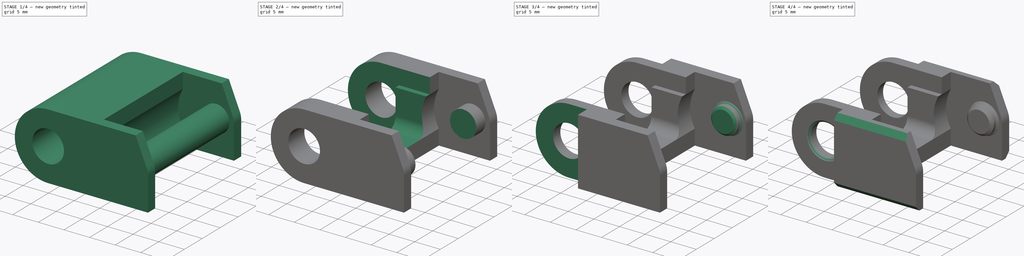
[diagram: build sequence overview — one tinted view per stage of 4, left to right]
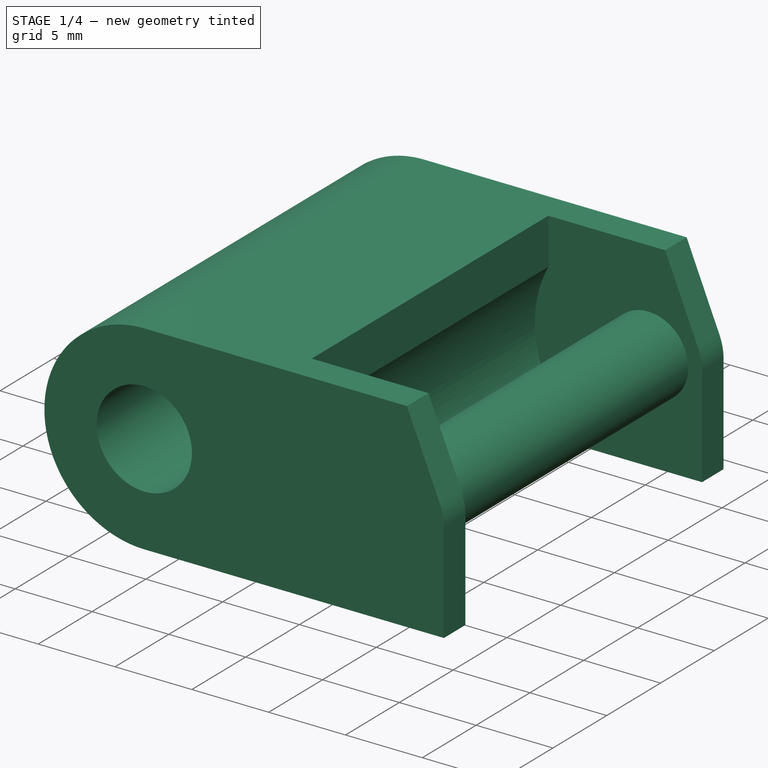
[diagram: stage 1 of 4 — iso view after this stage's code; geometry added in this stage tinted green]
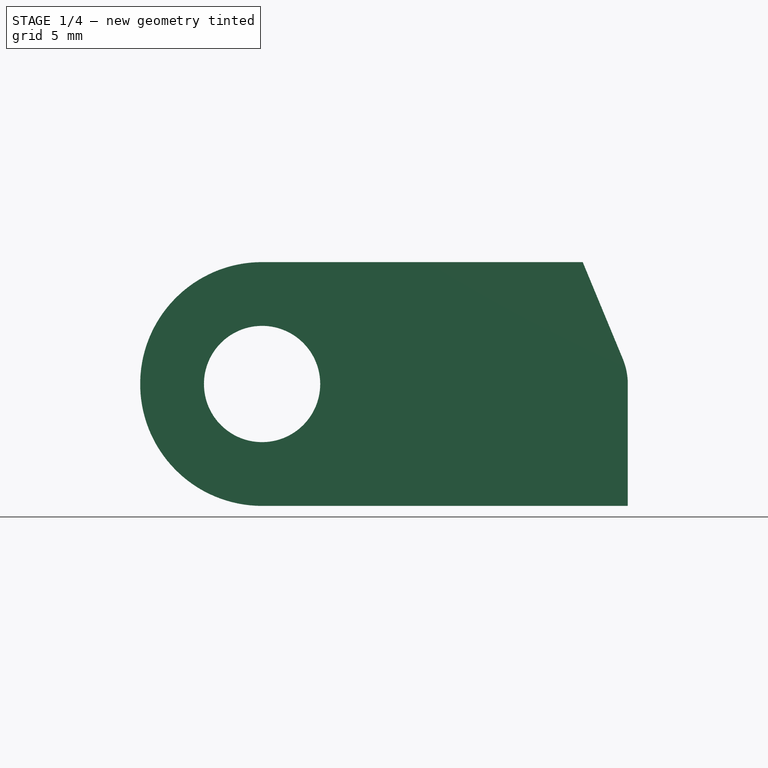
[diagram: stage 1 of 4 — front view after this stage's code; geometry added in this stage tinted green]
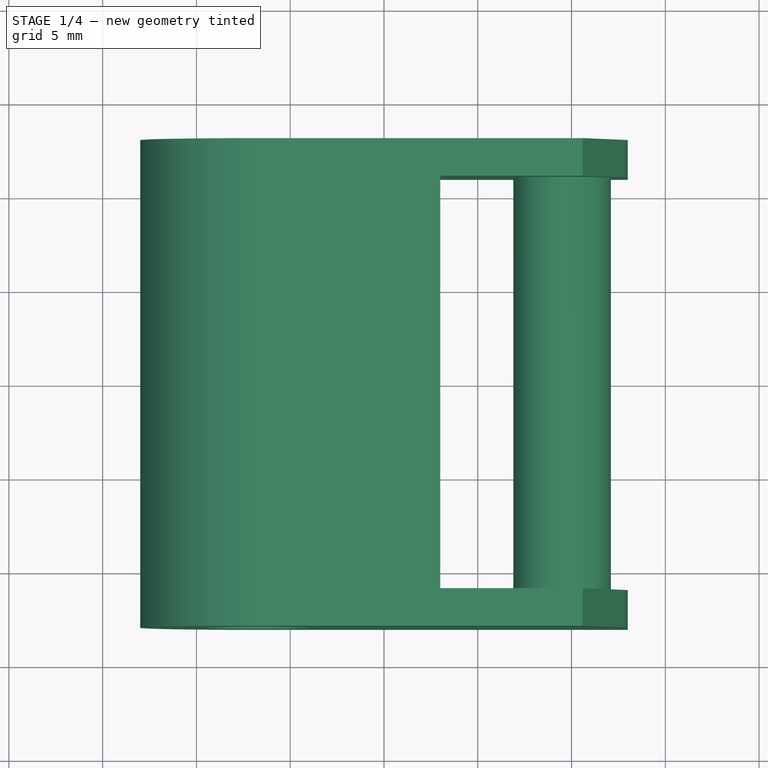
[diagram: stage 1 of 4 — top view after this stage's code; geometry added in this stage tinted green]
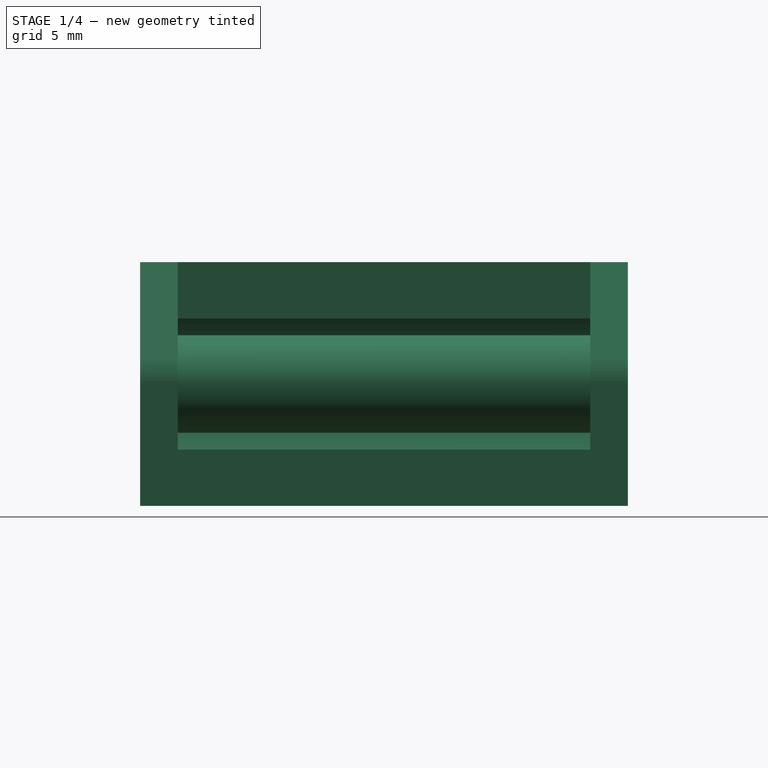
[diagram: stage 1 of 4 — right view after this stage's code; geometry added in this stage tinted green]
FCSTD DOCUMENT  (FreeCAD 0.19R20209 (Git))
Label: DragChainBund_22.5
License: Creative Commons Attribution
LicenseURL: http://creativecommons.org/licenses/by/4.0/
objects: Sketcher::SketchObject×5, PartDesign::Pocket×4, PartDesign::Chamfer×4, PartDesign::Pad×1, PartDesign::Body×1
note: 24 computed .brp shape members not serialized (recipe doc carries the construction recipe); baked Part::Feature solids carry a one-line shape summary decoded from their .brp

FEATURE [Sketcher::SketchObject] Sketch
  MapMode = 5
  Placement = pos=(0,0,0) rot=(1,0,0;1.5708rad)
  Support = -> [XZ_Plane]
  sketch-geometry (11):
    g0: LineSegment [constr] StartX=-13 StartY=6.5 StartZ=0 EndX=13 EndY=6.5 EndZ=0
    g1: LineSegment [constr] StartX=13 StartY=6.5 StartZ=0 EndX=13 EndY=-6.5 EndZ=0
    g2: LineSegment [constr] StartX=13 StartY=-6.5 StartZ=0 EndX=-13 EndY=-6.5 EndZ=0
    g3: LineSegment [constr] StartX=-13 StartY=-6.5 StartZ=0 EndX=-13 EndY=6.5 EndZ=0
    g4: ArcOfCircle CenterX=-6.5 CenterY=0 CenterZ=0 NormalX=0 NormalY=0 NormalZ=1 AngleXU=0 Radius=6.5 StartAngle=1.5708 EndAngle=4.71239
    g5: LineSegment StartX=-6.5 StartY=-6.5 StartZ=0 EndX=13 EndY=-6.5 EndZ=0
    g6: LineSegment StartX=13 StartY=-6.5 StartZ=0 EndX=13 EndY=0 EndZ=0
    g7: LineSegment StartX=10.596 StartY=6.5 StartZ=0 EndX=-6.5 EndY=6.5 EndZ=0
    g8: ArcOfCircle CenterX=9.5 CenterY=0 CenterZ=0 NormalX=0 NormalY=0 NormalZ=1 AngleXU=0 Radius=3.5 StartAngle=0 EndAngle=0.392699
    g9: LineSegment StartX=10.596 StartY=6.5 StartZ=0 EndX=12.7336 EndY=1.33939 EndZ=0
    g10: Circle CenterX=-6.5 CenterY=0 CenterZ=0 NormalX=0 NormalY=0 NormalZ=1 AngleXU=0 Radius=3.1
  constraints (30):
    c: Coincident(g0,g1)
    c: Coincident(g1,g2)
    c: Coincident(g2,g3)
    c: Coincident(g3,g0)
    c: Horizontal(g0)
    c: Horizontal(g2)
    c: Vertical(g1)
    c: Vertical(g3)
    c: Symmetric(g1,g0,g-1)
    c: DistanceX(g0,g0) = 26
    c: DistanceY(g3,g3) = 13
    c: Angle(g4) = 3.14159
    c: Diameter(g4) = 13
    c: Vertical(g4,g4)
    c: PointOnObject(g4,g-1)
    c: Tangent(g4,g3)
    c: Coincident(g5,g6)
    c: Vertical(g6)
    c: Horizontal(g7)
    c: Coincident(g7,g4)
    c: Coincident(g5,g4)
    c: Coincident(g5,g1)
    c: PointOnObject(g6,g-1)
    c: DistanceX(g4,g8) = 16
    c: Coincident(g9,g7)
    c: Tangent(g8,g6) = -1.5708
    c: Tangent(g9,g8) = 1.5708
    c: Angle(g9,g6) = 2.74889
    c: Coincident(g10,g4)
    c: Diameter(g10) = 6.2
FEATURE [PartDesign::Pad] Pad
  Length = 26
  Length2 = 100
  Midplane = true
  Placement = pos=(0,0,0) rot=(1,0,0;1.5708rad)
  Profile = -> Sketch
  Refine = true
  Type = 0
FEATURE [Sketcher::SketchObject] Sketch001
  ExternalGeometry = -> [Pad]
  MapMode = 5
  Placement = pos=(0,0,0) rot=(1,0,0;1.5708rad)
  Support = -> [XZ_Plane]
  sketch-geometry (11):
    g0: Circle CenterX=9.5 CenterY=0 CenterZ=0 NormalX=0 NormalY=0 NormalZ=1 AngleXU=0 Radius=2.6
    g1: ArcOfCircle CenterX=9.5 CenterY=0 CenterZ=0 NormalX=0 NormalY=0 NormalZ=1 AngleXU=0 Radius=7.38241 StartAngle=2.64765 EndAngle=3.63553
    g2: LineSegment [constr] StartX=-3 StartY=10.7323 StartZ=0 EndX=3 EndY=10.7323 EndZ=0
    g3: LineSegment [constr] StartX=3 StartY=10.7323 StartZ=0 EndX=3 EndY=-10.7323 EndZ=0
    g4: LineSegment [constr] StartX=3 StartY=-10.7323 StartZ=0 EndX=-3 EndY=-10.7323 EndZ=0
    g5: LineSegment [constr] StartX=-3 StartY=-10.7323 StartZ=0 EndX=-3 EndY=10.7323 EndZ=0
    g6: LineSegment StartX=9.5 StartY=7.38241 StartZ=0 EndX=3 EndY=7.38241 EndZ=0
    g7: LineSegment StartX=3 StartY=7.38241 StartZ=0 EndX=3 EndY=3.5 EndZ=0
    g8: LineSegment StartX=3 StartY=-7.38241 StartZ=0 EndX=9.5 EndY=-7.38241 EndZ=0
    g9: LineSegment StartX=3 StartY=-3.5 StartZ=0 EndX=3 EndY=-7.38241 EndZ=0
    g10: ArcOfCircle CenterX=9.5 CenterY=0 CenterZ=0 NormalX=0 NormalY=0 NormalZ=1 AngleXU=0 Radius=7.38241 StartAngle=4.71239 EndAngle=7.85398
  constraints (30):
    c: PointOnObject(g0,g-1)
    c: DistanceX(g-3,g0) = 16
    c: Diameter(g0) = 5.2
    c: Coincident(g1,g0)
    c: Coincident(g2,g3)
    c: Coincident(g3,g4)
    c: Coincident(g4,g5)
    c: Coincident(g5,g2)
    c: Horizontal(g2)
    c: Horizontal(g4)
    c: Vertical(g3)
    c: Vertical(g5)
    c: Symmetric(g2,g3,g-1)
    c: DistanceX(g2,g2) = 6
    c: PointOnObject(g-4,g1)
    c: Horizontal(g6)
    c: Coincident(g6,g7)
    c: Vertical(g7)
    c: Coincident(g9,g8)
    c: Horizontal(g8)
    c: PointOnObject(g6,g3)
    c: PointOnObject(g7,g1)
    c: PointOnObject(g9,g1)
    c: Tangent(g7,g9)
    c: PointOnObject(g1,g3)
    c: PointOnObject(g10,g6)
    c: Equal(g1,g10)
    c: PointOnObject(g1,g3)
    c: Coincident(g10,g8)
    c: Coincident(g1,g10)
FEATURE [PartDesign::Pocket] Pocket
  BaseFeature = -> Pad
  Length = 22
  Length2 = 100
  Midplane = true
  Placement = pos=(0,0,0) rot=(1,0,0;1.5708rad)
  Profile = -> Sketch001
  Refine = true
  Type = 0
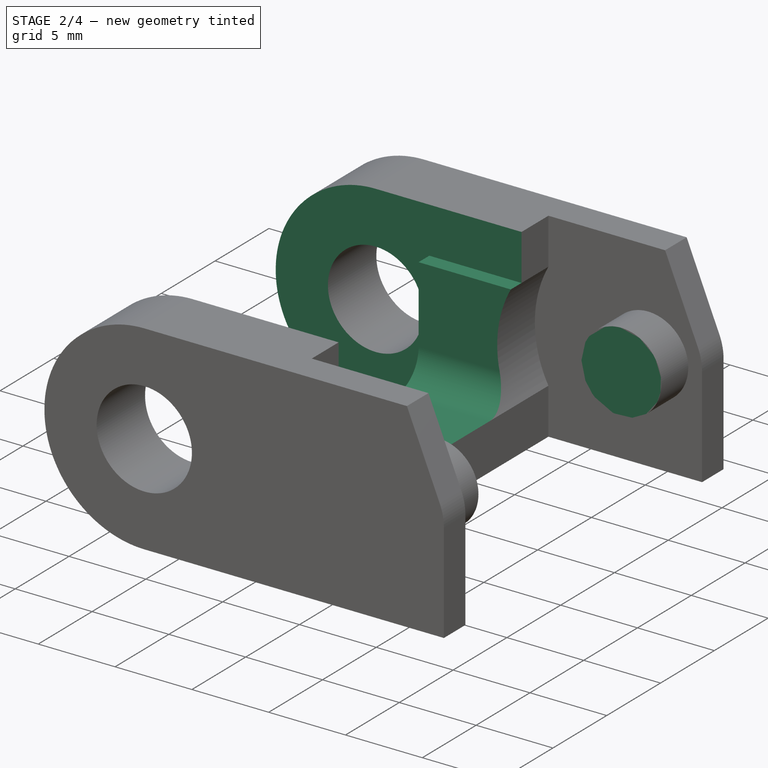
[diagram: stage 2 of 4 — iso view after this stage's code; geometry added in this stage tinted green]
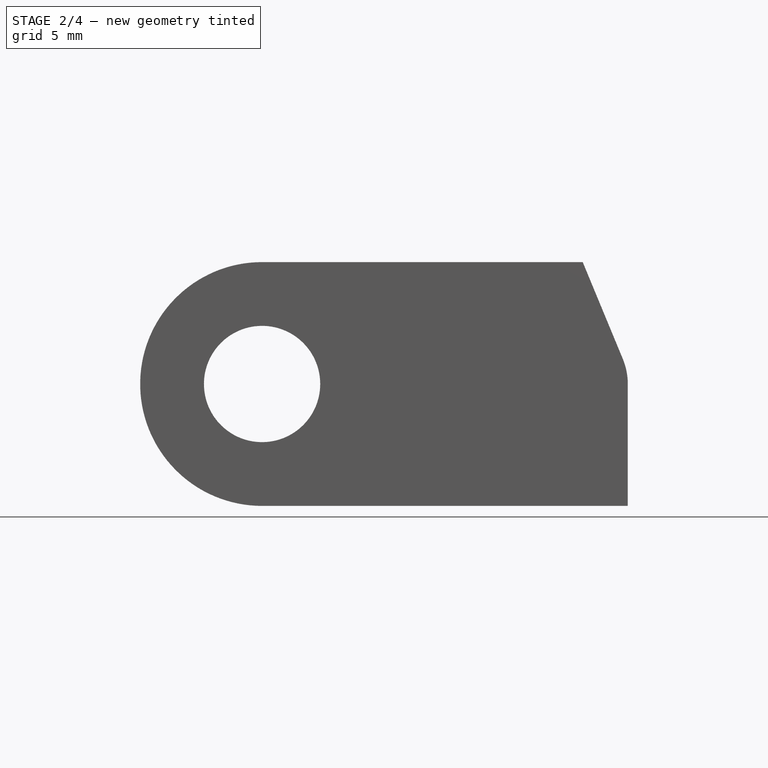
[diagram: stage 2 of 4 — front view after this stage's code; geometry added in this stage tinted green]
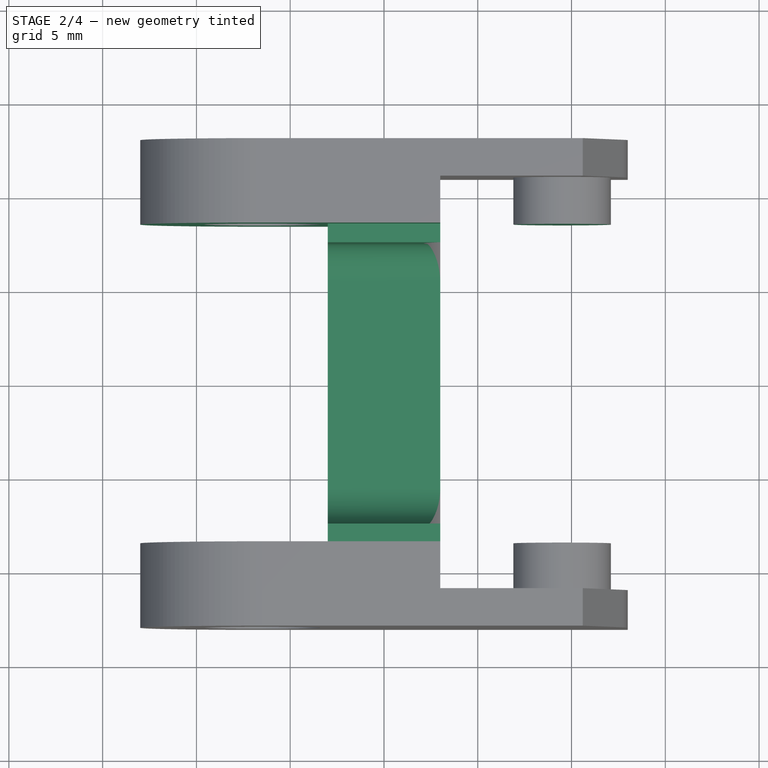
[diagram: stage 2 of 4 — top view after this stage's code; geometry added in this stage tinted green]
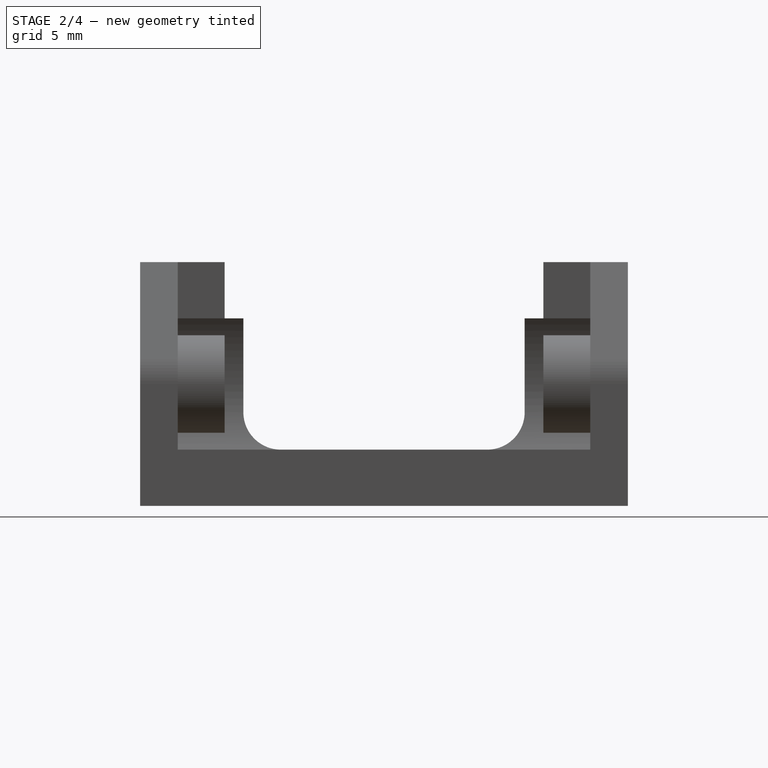
[diagram: stage 2 of 4 — right view after this stage's code; geometry added in this stage tinted green]
FEATURE [Sketcher::SketchObject] Sketch002
  ExternalGeometry = -> [Pocket]
  MapMode = 5
  Placement = pos=(0,0,0) rot=(1,0,0;1.5708rad)
  Support = -> [XZ_Plane]
  sketch-geometry (8):
    g0: LineSegment StartX=-3 StartY=3.5 StartZ=0 EndX=3 EndY=3.5 EndZ=0
    g1: LineSegment StartX=3 StartY=3.5 StartZ=0 EndX=3 EndY=-9.5 EndZ=0
    g2: LineSegment StartX=3 StartY=-9.5 StartZ=0 EndX=14.9673 EndY=-9.5 EndZ=0
    g3: LineSegment StartX=14.9673 StartY=-9.5 StartZ=0 EndX=14.9673 EndY=9.5 EndZ=0
    g4: LineSegment StartX=14.9673 StartY=9.5 StartZ=0 EndX=-6.5 EndY=9.5 EndZ=0
    g5: LineSegment StartX=-3 StartY=3.5 StartZ=0 EndX=-3 EndY=-9.5 EndZ=0
    g6: LineSegment StartX=-3 StartY=-9.5 StartZ=0 EndX=-6.5 EndY=-9.5 EndZ=0
    g7: ArcOfCircle CenterX=-6.5 CenterY=0 CenterZ=0 NormalX=0 NormalY=0 NormalZ=1 AngleXU=0 Radius=9.5 StartAngle=1.5708 EndAngle=4.71239
  constraints (22):
    c: Coincident(g0,g1)
    c: Vertical(g1)
    c: Coincident(g1,g2)
    c: Horizontal(g2)
    c: Coincident(g2,g3)
    c: Vertical(g3)
    c: Coincident(g3,g4)
    c: Horizontal(g4)
    c: Vertical(g5)
    c: Coincident(g5,g6)
    c: Horizontal(g6)
    c: Coincident(g7,g4)
    c: Coincident(g7,g6)
    c: Coincident(g7,g-3)
    c: Angle(g7) = 3.14159
    c: Coincident(g5,g0)
    c: Symmetric(g0,g0,g-2)
    c: DistanceX(g0,g0) = 6
    c: DistanceY(g0,g4) = 6
    c: DistanceY(g0,g-4) = 3
    c: Horizontal(g5,g1)
    c: Vertical(g6,g7)
FEATURE [PartDesign::Pocket] Pocket001
  BaseFeature = -> Pocket
  Length = 17
  Length2 = 100
  Midplane = true
  Placement = pos=(0,0,0) rot=(1,0,0;1.5708rad)
  Profile = -> Sketch002
  Refine = true
  Type = 0
FEATURE [Sketcher::SketchObject] Sketch003
  ExternalGeometry = -> [Pocket001]
  MapMode = 5
  Placement = pos=(0,0,0) rot=(0.57735,0.57735,0.57735;2.0944rad)
  Support = -> [YZ_Plane]
  sketch-geometry (6):
    g0: LineSegment StartX=-7.5 StartY=8.49466 StartZ=0 EndX=7.5 EndY=8.49466 EndZ=0
    g1: LineSegment StartX=7.5 StartY=8.49466 StartZ=0 EndX=7.5 EndY=-1.5 EndZ=0
    g2: LineSegment StartX=5.5 StartY=-3.5 StartZ=0 EndX=-5.5 EndY=-3.5 EndZ=0
    g3: LineSegment StartX=-7.5 StartY=-1.5 StartZ=0 EndX=-7.5 EndY=8.49466 EndZ=0
    g4: ArcOfCircle CenterX=-5.5 CenterY=-1.5 CenterZ=0 NormalX=0 NormalY=0 NormalZ=1 AngleXU=0 Radius=2 StartAngle=3.14159 EndAngle=4.71239
    g5: ArcOfCircle CenterX=5.5 CenterY=-1.5 CenterZ=0 NormalX=0 NormalY=0 NormalZ=1 AngleXU=0 Radius=2 StartAngle=4.71239 EndAngle=6.28319
  constraints (14):
    c: Coincident(g0,g1)
    c: Coincident(g3,g0)
    c: Horizontal(g2)
    c: Vertical(g1)
    c: Vertical(g3)
    c: Tangent(g3,g4) = 1.5708
    c: Tangent(g2,g4) = 1.5708
    c: Tangent(g2,g5) = 1.5708
    c: Tangent(g1,g5) = 1.5708
    c: Equal(g5,g4)
    c: Radius(g4) = 2
    c: DistanceX(g0,g0) = 15
    c: Symmetric(g0,g0,g-2)
    c: PointOnObject(g2,g-3)
FEATURE [PartDesign::Pocket] Pocket002
  BaseFeature = -> Pocket001
  Length = 5
  Length2 = 100
  Midplane = true
  Placement = pos=(0,0,0) rot=(1,0,0;1.5708rad)
  Profile = -> Sketch003
  Refine = true
  Type = 1
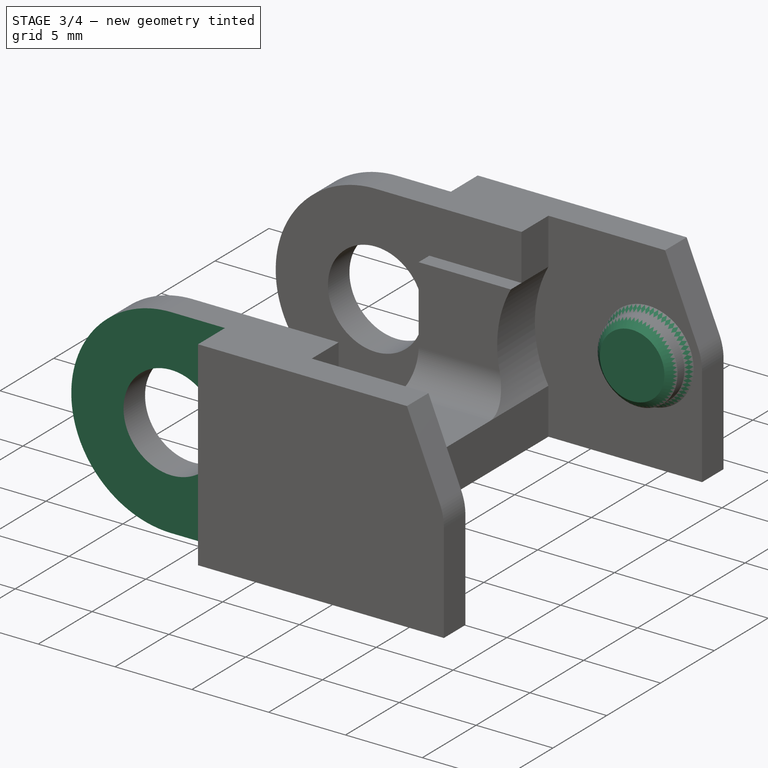
[diagram: stage 3 of 4 — iso view after this stage's code; geometry added in this stage tinted green]
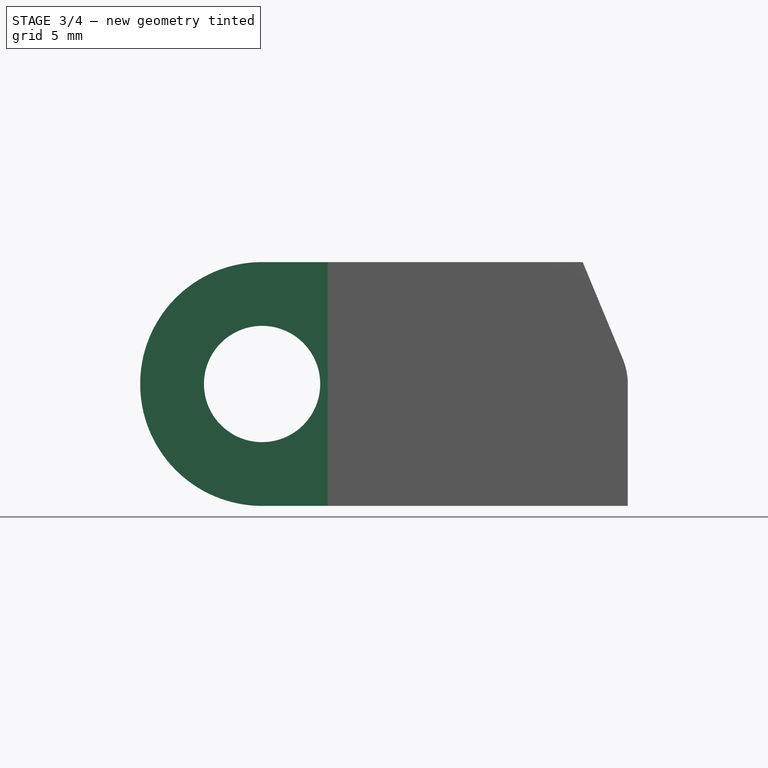
[diagram: stage 3 of 4 — front view after this stage's code; geometry added in this stage tinted green]
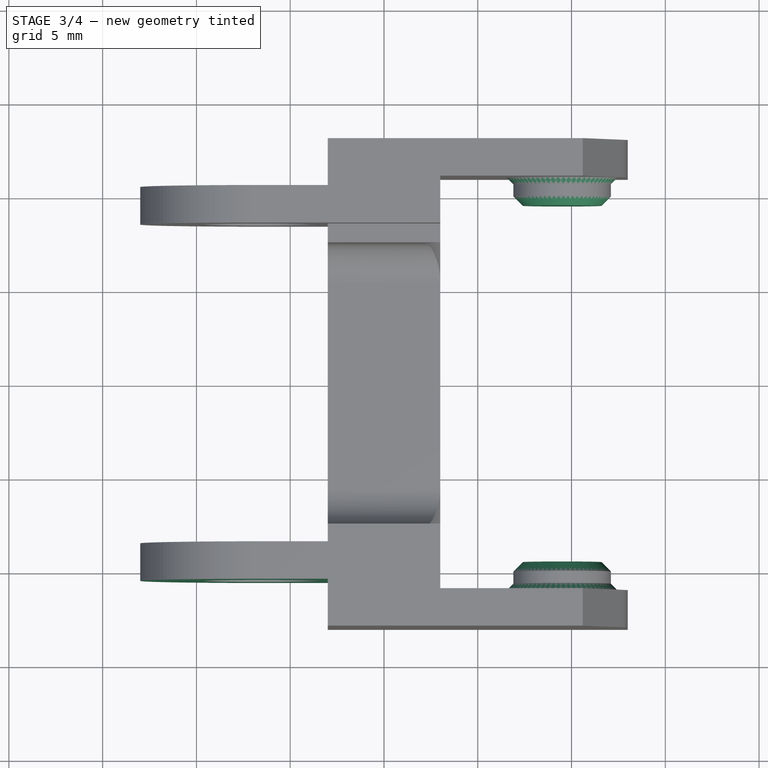
[diagram: stage 3 of 4 — top view after this stage's code; geometry added in this stage tinted green]
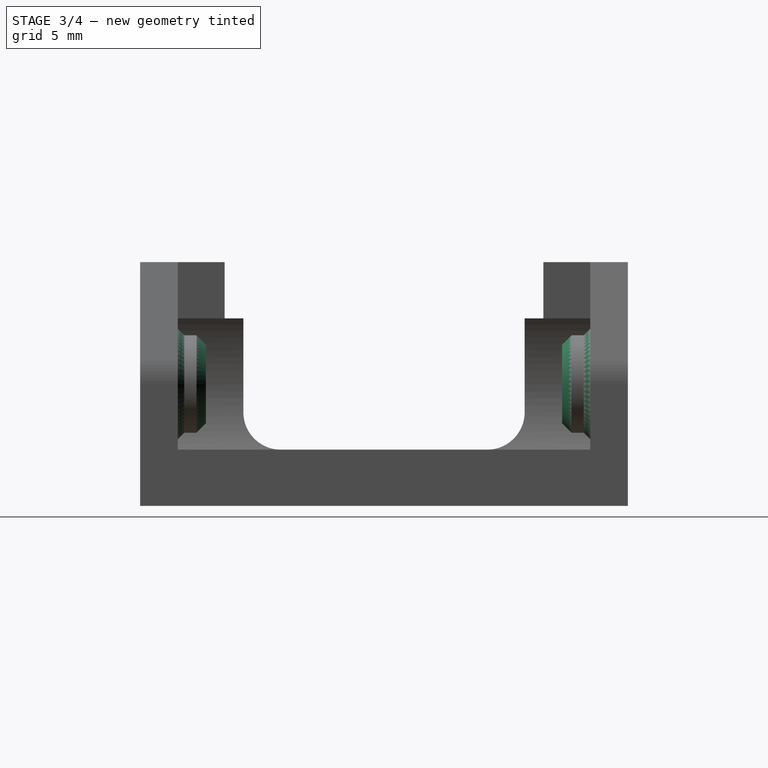
[diagram: stage 3 of 4 — right view after this stage's code; geometry added in this stage tinted green]
FEATURE [Sketcher::SketchObject] Sketch004
  MapMode = 5
  Support = -> [XY_Plane]
  sketch-geometry (12):
    g0: LineSegment StartX=-21.8216 StartY=16.178 StartZ=0 EndX=-3 EndY=16.178 EndZ=0
    g1: LineSegment StartX=-3 StartY=16.178 StartZ=0 EndX=-3 EndY=10.5 EndZ=0
    g2: LineSegment StartX=-3 StartY=10.5 StartZ=0 EndX=-21.8216 EndY=10.5 EndZ=0
    g3: LineSegment StartX=-21.8216 StartY=10.5 StartZ=0 EndX=-21.8216 EndY=16.178 EndZ=0
    g4: LineSegment StartX=-21.8216 StartY=-10.5 StartZ=0 EndX=-3 EndY=-10.5 EndZ=0
    g5: LineSegment StartX=-3 StartY=-10.5 StartZ=0 EndX=-3 EndY=-15.9071 EndZ=0
    g6: LineSegment StartX=-3 StartY=-15.9071 StartZ=0 EndX=-21.8216 EndY=-15.9071 EndZ=0
    g7: LineSegment StartX=-21.8216 StartY=-15.9071 StartZ=0 EndX=-21.8216 EndY=-10.5 EndZ=0
    g8: LineSegment StartX=5.17842 StartY=9.5 StartZ=0 EndX=15.2306 EndY=9.5 EndZ=0
    g9: LineSegment StartX=15.2306 StartY=9.5 StartZ=0 EndX=15.2306 EndY=-9.5 EndZ=0
    g10: LineSegment StartX=15.2306 StartY=-9.5 StartZ=0 EndX=5.17842 EndY=-9.5 EndZ=0
    g11: LineSegment StartX=5.17842 StartY=-9.5 StartZ=0 EndX=5.17842 EndY=9.5 EndZ=0
  constraints (29):
    c: Coincident(g0,g1)
    c: Coincident(g1,g2)
    c: Coincident(g2,g3)
    c: Coincident(g3,g0)
    c: Horizontal(g0)
    c: Horizontal(g2)
    c: Vertical(g1)
    c: Vertical(g3)
    c: Coincident(g4,g5)
    c: Coincident(g5,g6)
    c: Coincident(g6,g7)
    c: Coincident(g7,g4)
    c: Horizontal(g4)
    c: Horizontal(g6)
    c: Vertical(g5)
    c: Vertical(g7)
    c: Symmetric(g4,g2,g-1)
    c: DistanceY(g4,g2) = 21
    c: Vertical(g0,g5)
    c: DistanceX(g5,g-1) = 3
    c: Coincident(g8,g9)
    c: Coincident(g9,g10)
    c: Coincident(g10,g11)
    c: Coincident(g11,g8)
    c: Horizontal(g8)
    c: Horizontal(g10)
    c: Vertical(g11)
    c: Symmetric(g8,g9,g-1)
    c: DistanceY(g9,g8) = 19
FEATURE [PartDesign::Pocket] Pocket003
  BaseFeature = -> Pocket002
  Length = 5
  Length2 = 100
  Midplane = true
  Placement = pos=(0,0,0) rot=(1,0,0;1.5708rad)
  Profile = -> Sketch004
  Refine = true
  Type = 1
FEATURE [PartDesign::Chamfer] Chamfer
  Base = -> Pocket003 [Edge88,Edge100]
  BaseFeature = -> Pocket003
  Placement = pos=(0,0,0) rot=(1,0,0;1.5708rad)
  Refine = true
  Size = 0.5
  SupportTransform = true
FEATURE [PartDesign::Chamfer] Chamfer001
  Base = -> Chamfer [Edge3,Edge64]
  BaseFeature = -> Chamfer
  Placement = pos=(0,0,0) rot=(1,0,0;1.5708rad)
  Refine = true
  Size = 0.35
  SupportTransform = true
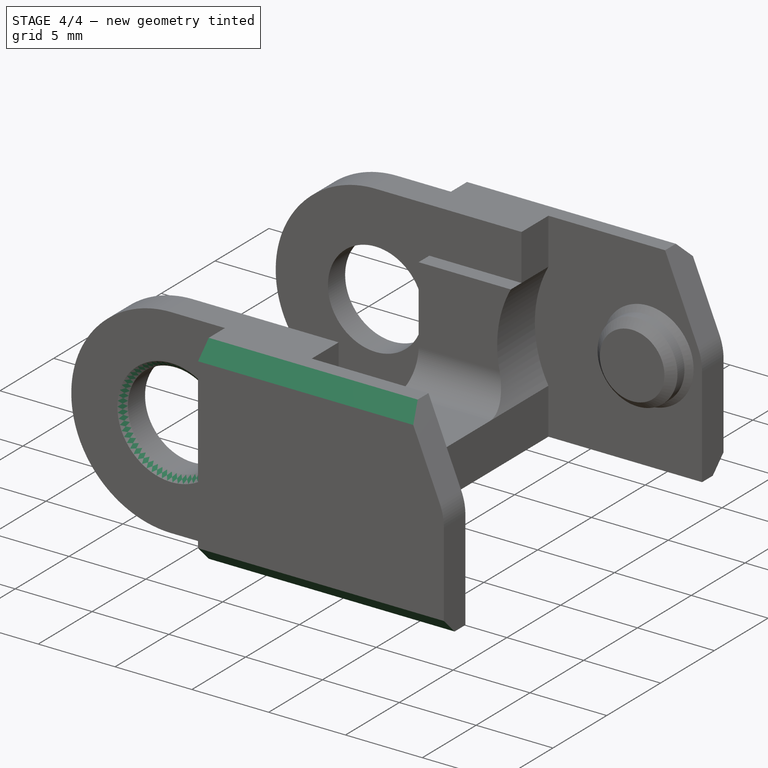
[diagram: stage 4 of 4 — iso view after this stage's code; geometry added in this stage tinted green]
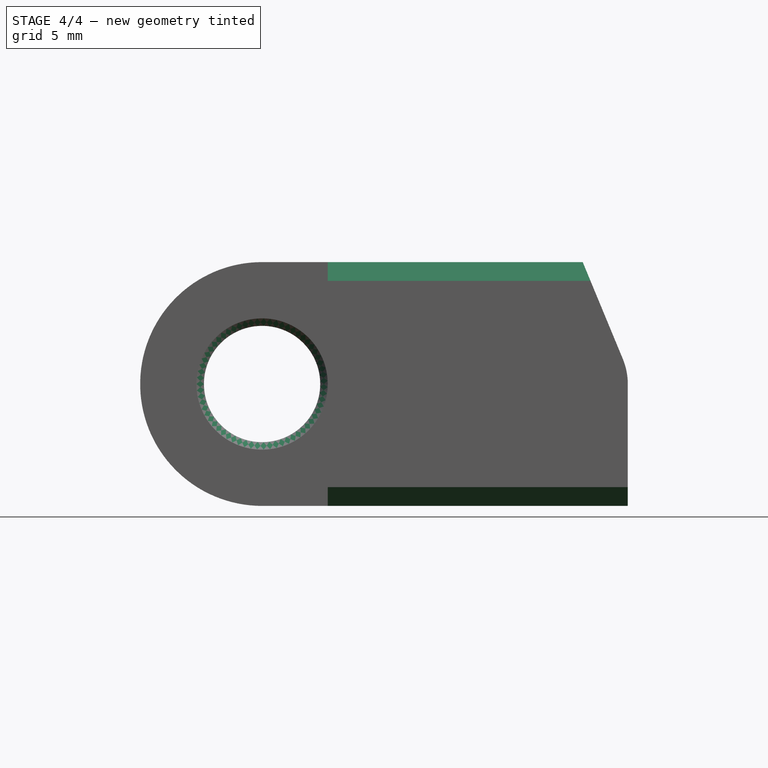
[diagram: stage 4 of 4 — front view after this stage's code; geometry added in this stage tinted green]
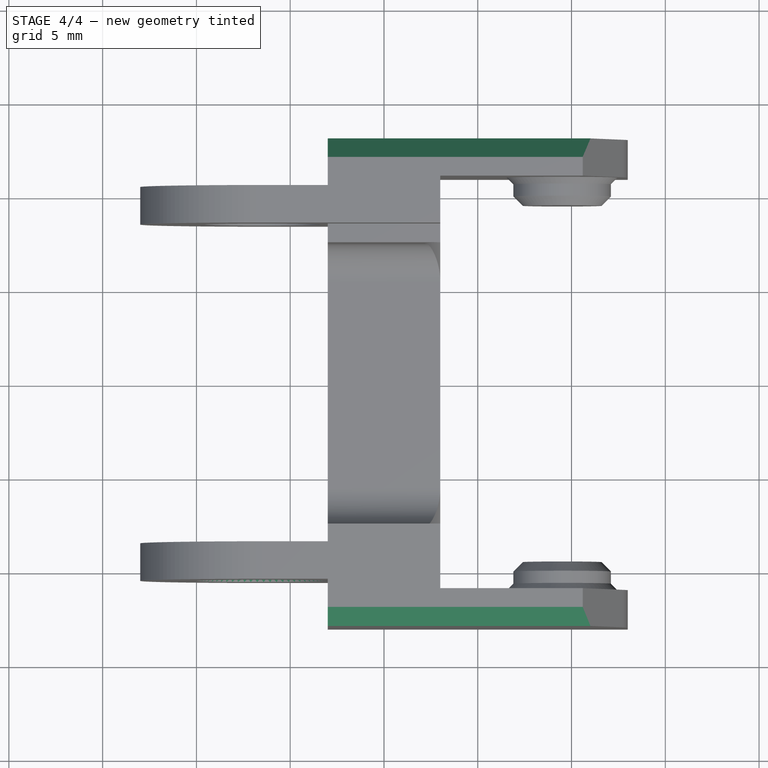
[diagram: stage 4 of 4 — top view after this stage's code; geometry added in this stage tinted green]
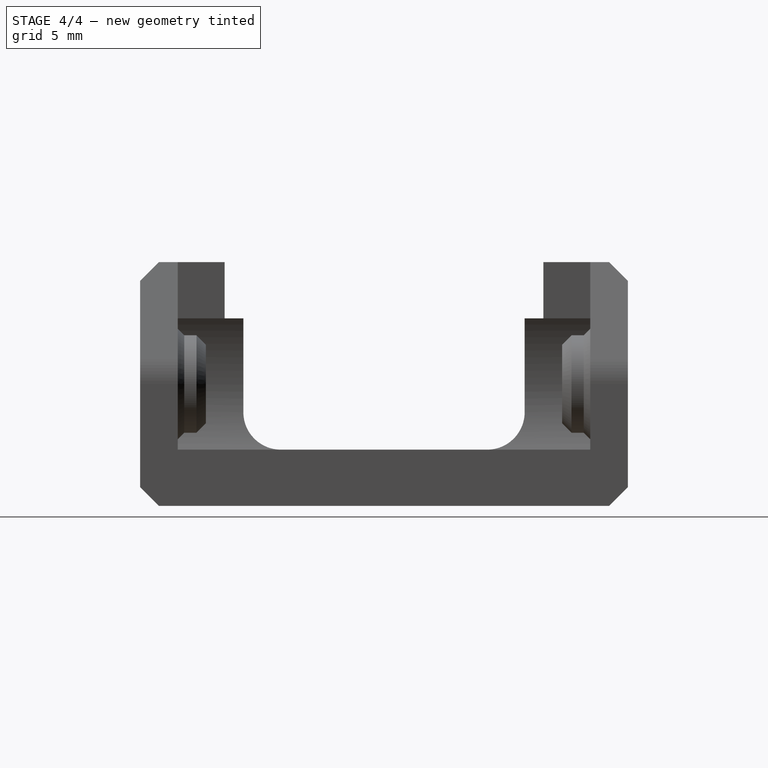
[diagram: stage 4 of 4 — right view after this stage's code; geometry added in this stage tinted green]
FEATURE [PartDesign::Chamfer] Chamfer002
  Base = -> Chamfer001 [Edge77,Edge59]
  BaseFeature = -> Chamfer001
  Placement = pos=(0,0,0) rot=(1,0,0;1.5708rad)
  Refine = true
  Size = 0.4
  SupportTransform = true
FEATURE [PartDesign::Chamfer] Chamfer003
  Base = -> Chamfer002 [Edge9,Edge18,Edge24,Edge64]
  BaseFeature = -> Chamfer002
  Placement = pos=(0,0,0) rot=(1,0,0;1.5708rad)
  Refine = true
  Size = 1
  SupportTransform = true
FEATURE [PartDesign::Body] Body
  Group = -> [Sketch,Pad,Sketch001,Pocket,Sketch002,Pocket001,Sketch003,Pocket002,Sketch004,Pocket003,Chamfer,Chamfer001,Chamfer002,Chamfer003]
  Origin = -> Origin
  Tip = -> Chamfer003
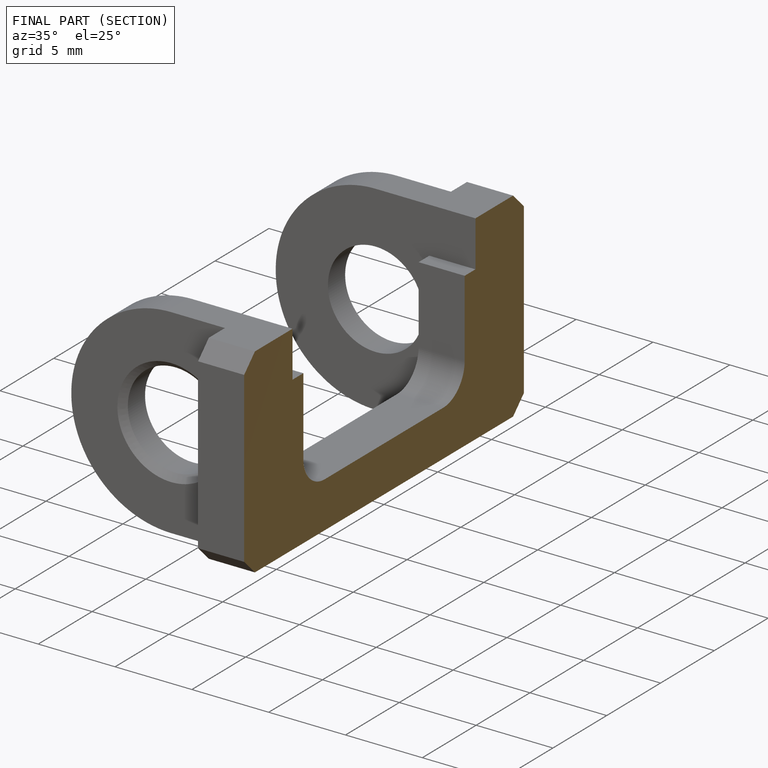
[diagram: finished part — half-section view (interior)]
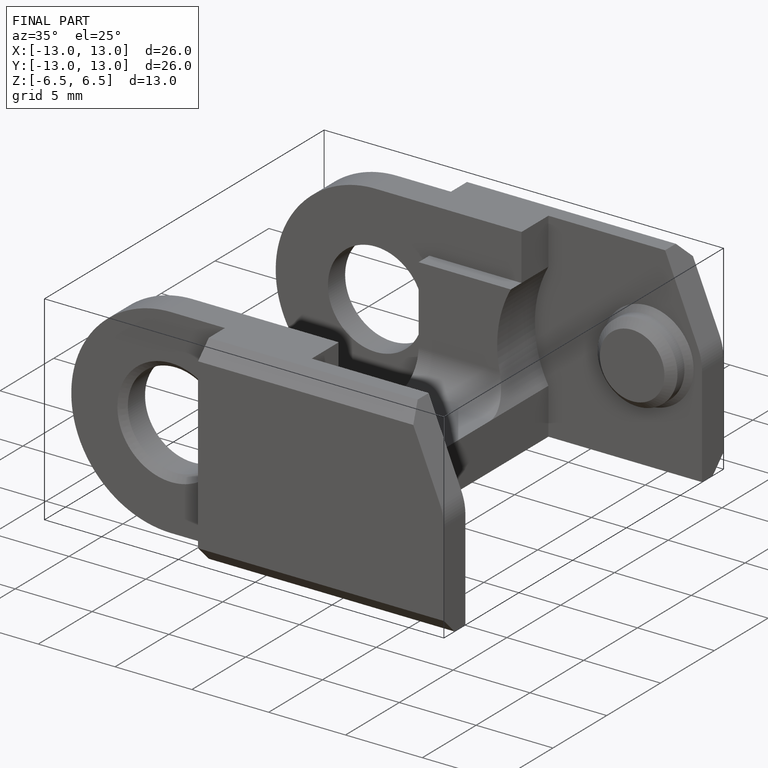
[diagram: finished part — iso view with bounding-box wireframe]
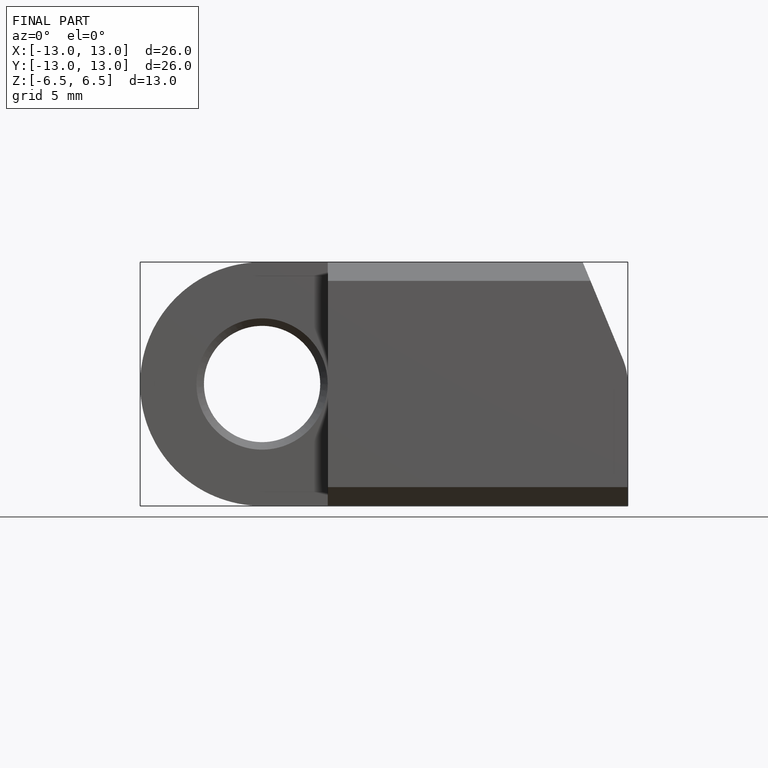
[diagram: finished part — front view with bounding-box wireframe]
